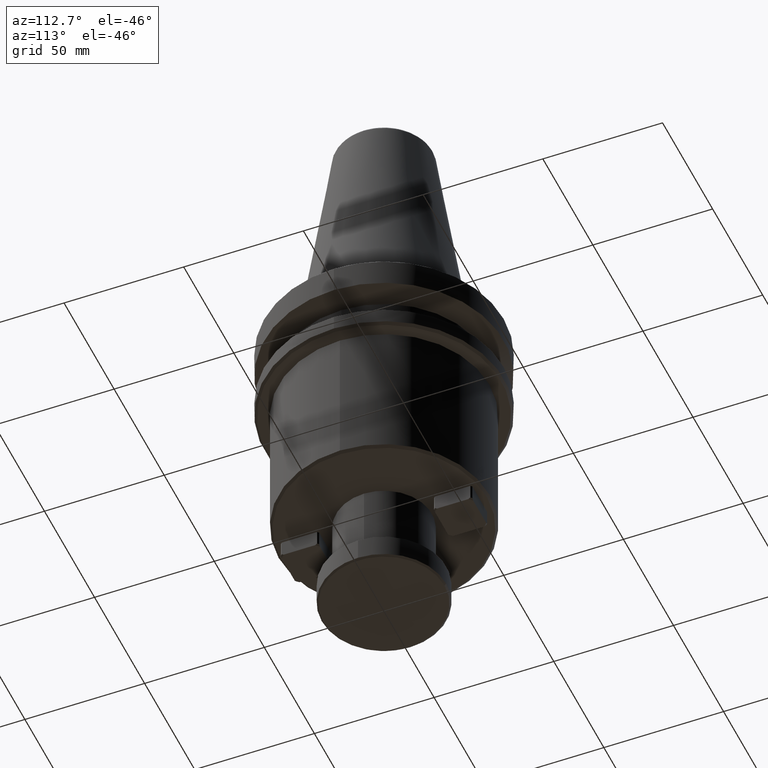
[diagram: clean part render]
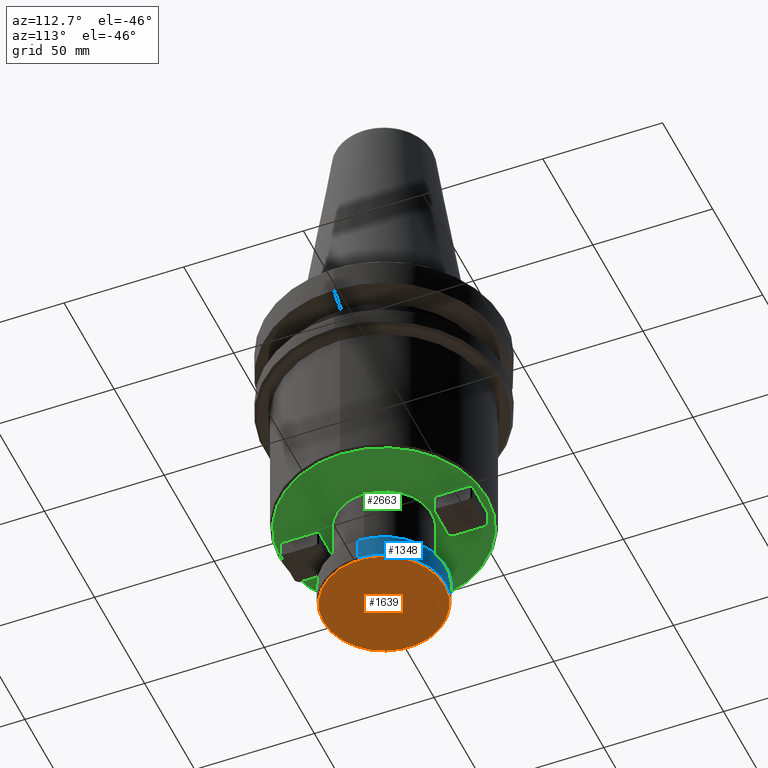
[diagram: same view with three faces highlighted in distinct colors, each labeled with its STEP entity id]
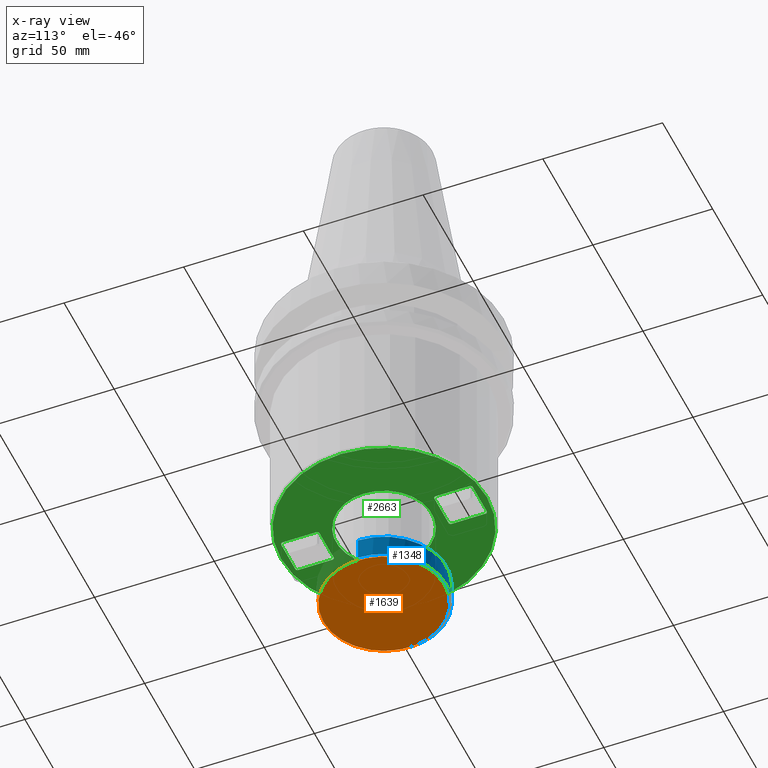
[diagram: x-ray of the same camera — body ghosted, the three highlighted faces saturated]
A machine part, auxiliary view with three faces highlighted in distinct colors.
The next image is the same camera in x-ray (body ghosted, the three faces saturated) — at least one of them is partly hidden behind the body in this view.
Their STEP definitions:

[orange] entity #1639 — the highlighted planar face has unit normal (0, 0, 1).
#251 = CIRCLE ( 'NONE', #729, 25.30000000000000100 ) ;
#275 = VERTEX_POINT ( 'NONE', #1646 ) ;
#350 = FACE_OUTER_BOUND ( 'NONE', #717, .T. ) ;
#363 = DIRECTION ( 'NONE',  ( 1.000000000000000000, 0.0000000000000000000, -0.0000000000000000000 ) ) ;
#364 = DIRECTION ( 'NONE',  ( 0.0000000000000000000, 0.0000000000000000000, 1.000000000000000000 ) ) ;
#365 = CARTESIAN_POINT ( 'NONE',  ( 0.0000000000000000000, 25.30000000000000100, -142.0000000000000600 ) ) ;
#371 = PLANE ( 'NONE',  #471 ) ;
#393 = CARTESIAN_POINT ( 'NONE',  ( 0.0000000000000000000, -25.30000000000000100, -142.0000000000000600 ) ) ;
#429 = CIRCLE ( 'NONE', #2447, 25.30000000000000100 ) ;
#471 = AXIS2_PLACEMENT_3D ( 'NONE', #365, #364, #363 ) ;
#717 = EDGE_LOOP ( 'NONE', ( #1407, #1241 ) ) ;
#729 = AXIS2_PLACEMENT_3D ( 'NONE', #1459, #1458, #1456 ) ;
#949 = EDGE_CURVE ( 'NONE', #1622, #275, #251, .T. ) ;
#1241 = ORIENTED_EDGE ( 'NONE', *, *, #2445, .F. ) ;
#1407 = ORIENTED_EDGE ( 'NONE', *, *, #949, .F. ) ;
#1456 = DIRECTION ( 'NONE',  ( 0.0000000000000000000, -1.000000000000000000, 0.0000000000000000000 ) ) ;
#1458 = DIRECTION ( 'NONE',  ( 0.0000000000000000000, -5.337610695313252400E-016, 1.000000000000000000 ) ) ;
#1459 = CARTESIAN_POINT ( 'NONE',  ( 0.0000000000000000000, 3.736327486719161500E-016, -142.0000000000000600 ) ) ;
#1622 = VERTEX_POINT ( 'NONE', #393 ) ;
#1639 = ADVANCED_FACE ( 'NONE', ( #350 ), #371, .F. ) ;
#1646 = CARTESIAN_POINT ( 'NONE',  ( 3.141219039812960700E-015, 25.30000000000000100, -142.0000000000000600 ) ) ;
#2041 = DIRECTION ( 'NONE',  ( 0.0000000000000000000, -1.000000000000000000, 0.0000000000000000000 ) ) ;
#2042 = DIRECTION ( 'NONE',  ( 0.0000000000000000000, -5.337610695313252400E-016, 1.000000000000000000 ) ) ;
#2045 = CARTESIAN_POINT ( 'NONE',  ( 0.0000000000000000000, 3.736327486719161500E-016, -142.0000000000000600 ) ) ;
#2445 = EDGE_CURVE ( 'NONE', #275, #1622, #429, .T. ) ;
#2447 = AXIS2_PLACEMENT_3D ( 'NONE', #2045, #2042, #2041 ) ;

[blue] entity #1348 — the highlighted cylindrical surface (partial cylindrical patch) has radius 26 mm, axis along (0, 0, 1).
#42 = CIRCLE ( 'NONE', #1723, 26.00000000000000400 ) ;
#153 = ORIENTED_EDGE ( 'NONE', *, *, #315, .F. ) ;
#156 = ORIENTED_EDGE ( 'NONE', *, *, #515, .T. ) ;
#262 = CYLINDRICAL_SURFACE ( 'NONE', #2079, 26.00000000000000400 ) ;
#271 = CARTESIAN_POINT ( 'NONE',  ( 0.0000000000000000000, 0.0000000000000000000, -141.3000000000000400 ) ) ;
#272 = AXIS2_PLACEMENT_3D ( 'NONE', #1048, #1046, #1044 ) ;
#273 = DIRECTION ( 'NONE',  ( 0.0000000000000000000, 0.0000000000000000000, 1.000000000000000000 ) ) ;
#276 = DIRECTION ( 'NONE',  ( 1.000000000000000000, 0.0000000000000000000, 0.0000000000000000000 ) ) ;
#315 = EDGE_CURVE ( 'NONE', #2545, #2067, #694, .T. ) ;
#320 = FACE_OUTER_BOUND ( 'NONE', #660, .T. ) ;
#384 = VERTEX_POINT ( 'NONE', #1739 ) ;
#515 = EDGE_CURVE ( 'NONE', #2608, #2065, #2339, .T. ) ;
#570 = EDGE_CURVE ( 'NONE', #2545, #2608, #42, .T. ) ;
#660 = EDGE_LOOP ( 'NONE', ( #156, #2601, #987, #153, #689 ) ) ;
#689 = ORIENTED_EDGE ( 'NONE', *, *, #570, .T. ) ;
#694 = LINE ( 'NONE', #2043, #1716 ) ;
#807 = DIRECTION ( 'NONE',  ( 1.000000000000000000, 0.0000000000000000000, 0.0000000000000000000 ) ) ;
#809 = CARTESIAN_POINT ( 'NONE',  ( 0.0000000000000000000, 0.0000000000000000000, 0.0000000000000000000 ) ) ;
#815 = LINE ( 'NONE', #1670, #1425 ) ;
#845 = DIRECTION ( 'NONE',  ( 0.0000000000000000000, 0.0000000000000000000, 1.000000000000000000 ) ) ;
#987 = ORIENTED_EDGE ( 'NONE', *, *, #1246, .F. ) ;
#1044 = DIRECTION ( 'NONE',  ( -1.000000000000000000, 0.0000000000000000000, 0.0000000000000000000 ) ) ;
#1046 = DIRECTION ( 'NONE',  ( -0.0000000000000000000, -0.0000000000000000000, 1.000000000000000000 ) ) ;
#1048 = CARTESIAN_POINT ( 'NONE',  ( 0.0000000000000000000, 0.0000000000000000000, -131.7000000000000200 ) ) ;
#1246 = EDGE_CURVE ( 'NONE', #2067, #384, #1729, .T. ) ;
#1348 = ADVANCED_FACE ( 'NONE', ( #320 ), #262, .T. ) ;
#1425 = VECTOR ( 'NONE', #1671, 1000.000000000000000 ) ;
#1581 = CARTESIAN_POINT ( 'NONE',  ( 3.184081677783118600E-015, 26.00000000000000400, -141.3000000000000400 ) ) ;
#1656 = CARTESIAN_POINT ( 'NONE',  ( 26.00000000000000400, 0.0000000000000000000, -141.3000000000000400 ) ) ;
#1670 = CARTESIAN_POINT ( 'NONE',  ( -26.00000000000000400, 3.184081677783118600E-015, 0.0000000000000000000 ) ) ;
#1671 = DIRECTION ( 'NONE',  ( 0.0000000000000000000, 0.0000000000000000000, 1.000000000000000000 ) ) ;
#1716 = VECTOR ( 'NONE', #1768, 1000.000000000000000 ) ;
#1723 = AXIS2_PLACEMENT_3D ( 'NONE', #2188, #2575, #2263 ) ;
#1729 = CIRCLE ( 'NONE', #272, 26.00000000000000400 ) ;
#1739 = CARTESIAN_POINT ( 'NONE',  ( -26.00000000000000400, 3.184081677783118600E-015, -131.7000000000000200 ) ) ;
#1757 = AXIS2_PLACEMENT_3D ( 'NONE', #271, #273, #276 ) ;
#1768 = DIRECTION ( 'NONE',  ( 0.0000000000000000000, 0.0000000000000000000, 1.000000000000000000 ) ) ;
#2043 = CARTESIAN_POINT ( 'NONE',  ( 26.00000000000000400, 0.0000000000000000000, 0.0000000000000000000 ) ) ;
#2065 = VERTEX_POINT ( 'NONE', #2642 ) ;
#2067 = VERTEX_POINT ( 'NONE', #2637 ) ;
#2079 = AXIS2_PLACEMENT_3D ( 'NONE', #809, #845, #807 ) ;
#2188 = CARTESIAN_POINT ( 'NONE',  ( 0.0000000000000000000, 0.0000000000000000000, -141.3000000000000400 ) ) ;
#2263 = DIRECTION ( 'NONE',  ( 1.000000000000000000, 0.0000000000000000000, 0.0000000000000000000 ) ) ;
#2339 = CIRCLE ( 'NONE', #1757, 26.00000000000000400 ) ;
#2520 = EDGE_CURVE ( 'NONE', #2065, #384, #815, .T. ) ;
#2545 = VERTEX_POINT ( 'NONE', #1656 ) ;
#2575 = DIRECTION ( 'NONE',  ( 0.0000000000000000000, 0.0000000000000000000, 1.000000000000000000 ) ) ;
#2601 = ORIENTED_EDGE ( 'NONE', *, *, #2520, .T. ) ;
#2608 = VERTEX_POINT ( 'NONE', #1581 ) ;
#2637 = CARTESIAN_POINT ( 'NONE',  ( 26.00000000000000400, 0.0000000000000000000, -131.7000000000000200 ) ) ;
#2642 = CARTESIAN_POINT ( 'NONE',  ( -26.00000000000000400, 3.184081677783118600E-015, -141.3000000000000400 ) ) ;

[green] entity #2663 — the highlighted planar face has unit normal (0, 0, -1).
#11 = VERTEX_POINT ( 'NONE', #1707 ) ;
#19 = VERTEX_POINT ( 'NONE', #2400 ) ;
#28 = DIRECTION ( 'NONE',  ( 0.0000000000000000000, 1.000000000000000000, 0.0000000000000000000 ) ) ;
#29 = CARTESIAN_POINT ( 'NONE',  ( 7.999999999999992900, 0.0000000000000000000, -99.99999999999997200 ) ) ;
#31 = CARTESIAN_POINT ( 'NONE',  ( 7.999999999999992900, -39.39999999999994900, -99.99999999999997200 ) ) ;
#53 = DIRECTION ( 'NONE',  ( 1.000000000000000000, -0.0000000000000000000, 0.0000000000000000000 ) ) ;
#54 = CARTESIAN_POINT ( 'NONE',  ( 0.0000000000000000000, 23.99999999999999300, -99.99999999999997200 ) ) ;
#67 = VECTOR ( 'NONE', #2138, 1000.000000000000100 ) ;
#71 = CARTESIAN_POINT ( 'NONE',  ( -7.399999999999951500, -23.99999999999999300, -99.99999999999997200 ) ) ;
#136 = ORIENTED_EDGE ( 'NONE', *, *, #2553, .F. ) ;
#137 = CARTESIAN_POINT ( 'NONE',  ( -7.400000000000043900, -39.99999999999999300, -99.99999999999997200 ) ) ;
#157 = LINE ( 'NONE', #29, #1242 ) ;
#238 = EDGE_CURVE ( 'NONE', #2407, #2262, #550, .T. ) ;
#274 = EDGE_CURVE ( 'NONE', #2475, #914, #2417, .T. ) ;
#304 = EDGE_CURVE ( 'NONE', #1785, #19, #544, .T. ) ;
#327 = VECTOR ( 'NONE', #53, 1000.000000000000000 ) ;
#334 = EDGE_CURVE ( 'NONE', #2165, #993, #1363, .T. ) ;
#335 = ORIENTED_EDGE ( 'NONE', *, *, #304, .T. ) ;
#336 = LINE ( 'NONE', #1636, #2546 ) ;
#381 = AXIS2_PLACEMENT_3D ( 'NONE', #1135, #1118, #1116 ) ;
#400 = ORIENTED_EDGE ( 'NONE', *, *, #334, .F. ) ;
#418 = CARTESIAN_POINT ( 'NONE',  ( 7.999999999999994700, -24.60000000000003300, -99.99999999999997200 ) ) ;
#438 = VECTOR ( 'NONE', #1945, 1000.000000000000100 ) ;
#454 = VERTEX_POINT ( 'NONE', #2380 ) ;
#455 = EDGE_CURVE ( 'NONE', #914, #993, #2411, .T. ) ;
#469 = ORIENTED_EDGE ( 'NONE', *, *, #2335, .F. ) ;
#520 = LINE ( 'NONE', #2691, #2266 ) ;
#538 = LINE ( 'NONE', #2149, #67 ) ;
#544 = LINE ( 'NONE', #1411, #583 ) ;
#550 = LINE ( 'NONE', #1872, #438 ) ;
#583 = VECTOR ( 'NONE', #1856, 1000.000000000000000 ) ;
#637 = VERTEX_POINT ( 'NONE', #71 ) ;
#638 = AXIS2_PLACEMENT_3D ( 'NONE', #795, #792, #790 ) ;
#701 = EDGE_CURVE ( 'NONE', #990, #1144, #1682, .T. ) ;
#733 = EDGE_CURVE ( 'NONE', #19, #1908, #520, .T. ) ;
#780 = ORIENTED_EDGE ( 'NONE', *, *, #2090, .F. ) ;
#790 = DIRECTION ( 'NONE',  ( 1.000000000000000000, 0.0000000000000000000, 0.0000000000000000000 ) ) ;
#792 = DIRECTION ( 'NONE',  ( 0.0000000000000000000, -0.0000000000000000000, 1.000000000000000000 ) ) ;
#795 = CARTESIAN_POINT ( 'NONE',  ( 0.0000000000000000000, 0.0000000000000000000, -99.99999999999994300 ) ) ;
#816 = ORIENTED_EDGE ( 'NONE', *, *, #455, .T. ) ;
#835 = CARTESIAN_POINT ( 'NONE',  ( 20.00000000000001100, 0.0000000000000000000, -99.99999999999998600 ) ) ;
#891 = VERTEX_POINT ( 'NONE', #1518 ) ;
#892 = FACE_BOUND ( 'NONE', #1838, .T. ) ;
#914 = VERTEX_POINT ( 'NONE', #1514 ) ;
#953 = ORIENTED_EDGE ( 'NONE', *, *, #701, .T. ) ;
#961 = FACE_OUTER_BOUND ( 'NONE', #1502, .T. ) ;
#989 = VECTOR ( 'NONE', #1840, 1000.000000000000000 ) ;
#990 = VERTEX_POINT ( 'NONE', #1432 ) ;
#993 = VERTEX_POINT ( 'NONE', #1421 ) ;
#1042 = DIRECTION ( 'NONE',  ( -1.000000000000000000, 0.0000000000000000000, -0.0000000000000000000 ) ) ;
#1050 = CARTESIAN_POINT ( 'NONE',  ( 0.0000000000000000000, 40.00000000000000700, -99.99999999999997200 ) ) ;
#1072 = ORIENTED_EDGE ( 'NONE', *, *, #2289, .F. ) ;
#1077 = VECTOR ( 'NONE', #2170, 1000.000000000000000 ) ;
#1078 = ORIENTED_EDGE ( 'NONE', *, *, #238, .T. ) ;
#1116 = DIRECTION ( 'NONE',  ( 1.000000000000000000, 0.0000000000000000000, 0.0000000000000000000 ) ) ;
#1118 = DIRECTION ( 'NONE',  ( 0.0000000000000000000, 0.0000000000000000000, 1.000000000000000000 ) ) ;
#1125 = EDGE_LOOP ( 'NONE', ( #1156, #2265 ) ) ;
#1135 = CARTESIAN_POINT ( 'NONE',  ( 0.0000000000000000000, 0.0000000000000000000, -99.99999999999998600 ) ) ;
#1144 = VERTEX_POINT ( 'NONE', #1336 ) ;
#1156 = ORIENTED_EDGE ( 'NONE', *, *, #1225, .T. ) ;
#1176 = CIRCLE ( 'NONE', #381, 20.00000000000001100 ) ;
#1192 = VERTEX_POINT ( 'NONE', #1249 ) ;
#1211 = ORIENTED_EDGE ( 'NONE', *, *, #1909, .T. ) ;
#1225 = EDGE_CURVE ( 'NONE', #1337, #2052, #1176, .T. ) ;
#1242 = VECTOR ( 'NONE', #28, 1000.000000000000000 ) ;
#1249 = CARTESIAN_POINT ( 'NONE',  ( -7.399999999999984400, 23.99999999999999300, -99.99999999999997200 ) ) ;
#1336 = CARTESIAN_POINT ( 'NONE',  ( -8.000000000000005300, -39.40000000000003400, -99.99999999999997200 ) ) ;
#1337 = VERTEX_POINT ( 'NONE', #835 ) ;
#1344 = EDGE_CURVE ( 'NONE', #2573, #891, #2002, .T. ) ;
#1347 = VECTOR ( 'NONE', #1042, 1000.000000000000000 ) ;
#1363 = LINE ( 'NONE', #2010, #1970 ) ;
#1388 = ORIENTED_EDGE ( 'NONE', *, *, #2710, .T. ) ;
#1389 = DIRECTION ( 'NONE',  ( -1.000000000000000000, 0.0000000000000000000, -0.0000000000000000000 ) ) ;
#1393 = CARTESIAN_POINT ( 'NONE',  ( 0.0000000000000000000, 0.0000000000000000000, -99.99999999999997200 ) ) ;
#1399 = PLANE ( 'NONE',  #1956 ) ;
#1409 = DIRECTION ( 'NONE',  ( 0.0000000000000000000, 0.0000000000000000000, -1.000000000000000000 ) ) ;
#1411 = CARTESIAN_POINT ( 'NONE',  ( 0.0000000000000000000, -39.99999999999999300, -99.99999999999997200 ) ) ;
#1420 = CARTESIAN_POINT ( 'NONE',  ( -7.399999999999951500, -23.99999999999999300, -99.99999999999997200 ) ) ;
#1421 = CARTESIAN_POINT ( 'NONE',  ( 8.000000000000000000, 39.40000000000002000, -99.99999999999997200 ) ) ;
#1428 = LINE ( 'NONE', #1050, #1347 ) ;
#1429 = DIRECTION ( 'NONE',  ( -0.7071067811865474600, -0.7071067811865474600, -0.0000000000000000000 ) ) ;
#1432 = CARTESIAN_POINT ( 'NONE',  ( -7.999999999999996400, -24.60000000000003700, -99.99999999999997200 ) ) ;
#1455 = ORIENTED_EDGE ( 'NONE', *, *, #274, .T. ) ;
#1502 = EDGE_LOOP ( 'NONE', ( #2446, #1072 ) ) ;
#1514 = CARTESIAN_POINT ( 'NONE',  ( 8.000000000000000000, 24.60000000000001200, -99.99999999999997200 ) ) ;
#1518 = CARTESIAN_POINT ( 'NONE',  ( -43.00000000000000000, 5.327213576290986800E-015, -99.99999999999994300 ) ) ;
#1554 = LINE ( 'NONE', #54, #327 ) ;
#1556 = CIRCLE ( 'NONE', #2399, 20.00000000000001100 ) ;
#1567 = FACE_BOUND ( 'NONE', #1125, .T. ) ;
#1584 = VECTOR ( 'NONE', #2616, 1000.000000000000000 ) ;
#1590 = VERTEX_POINT ( 'NONE', #418 ) ;
#1634 = DIRECTION ( 'NONE',  ( -0.7071067811865474600, 0.7071067811865474600, -0.0000000000000000000 ) ) ;
#1635 = CARTESIAN_POINT ( 'NONE',  ( 43.00000000000000000, 0.0000000000000000000, -99.99999999999994300 ) ) ;
#1636 = CARTESIAN_POINT ( 'NONE',  ( -8.000000000000007100, -39.40000000000003400, -99.99999999999997200 ) ) ;
#1682 = LINE ( 'NONE', #2095, #1077 ) ;
#1707 = CARTESIAN_POINT ( 'NONE',  ( -8.000000000000000000, 24.59999999999998000, -99.99999999999997200 ) ) ;
#1780 = LINE ( 'NONE', #2619, #1584 ) ;
#1784 = DIRECTION ( 'NONE',  ( 0.7071067811865474600, -0.7071067811865474600, -0.0000000000000000000 ) ) ;
#1785 = VERTEX_POINT ( 'NONE', #137 ) ;
#1816 = CIRCLE ( 'NONE', #2746, 43.00000000000000000 ) ;
#1821 = CARTESIAN_POINT ( 'NONE',  ( 7.399999999999980800, 23.99999999999998900, -99.99999999999997200 ) ) ;
#1838 = EDGE_LOOP ( 'NONE', ( #335, #2415, #1211, #469, #1994, #2383, #953, #136 ) ) ;
#1840 = DIRECTION ( 'NONE',  ( 0.0000000000000000000, 1.000000000000000000, 0.0000000000000000000 ) ) ;
#1856 = DIRECTION ( 'NONE',  ( 1.000000000000000000, -0.0000000000000000000, 0.0000000000000000000 ) ) ;
#1872 = CARTESIAN_POINT ( 'NONE',  ( -7.399999999999982600, 40.00000000000000700, -99.99999999999997200 ) ) ;
#1884 = EDGE_CURVE ( 'NONE', #1192, #2475, #1554, .T. ) ;
#1908 = VERTEX_POINT ( 'NONE', #31 ) ;
#1909 = EDGE_CURVE ( 'NONE', #1908, #1590, #157, .T. ) ;
#1911 = EDGE_LOOP ( 'NONE', ( #2576, #1455, #816, #400, #1388, #1078, #2774, #780 ) ) ;
#1945 = DIRECTION ( 'NONE',  ( -0.7071067811865474600, -0.7071067811865474600, -0.0000000000000000000 ) ) ;
#1956 = AXIS2_PLACEMENT_3D ( 'NONE', #1393, #1409, #1389 ) ;
#1970 = VECTOR ( 'NONE', #1784, 1000.000000000000100 ) ;
#1994 = ORIENTED_EDGE ( 'NONE', *, *, #2483, .T. ) ;
#2000 = CARTESIAN_POINT ( 'NONE',  ( 7.399999999999981700, 23.99999999999999300, -99.99999999999997200 ) ) ;
#2002 = CIRCLE ( 'NONE', #638, 43.00000000000000000 ) ;
#2007 = CARTESIAN_POINT ( 'NONE',  ( 0.0000000000000000000, -23.99999999999999300, -99.99999999999997200 ) ) ;
#2009 = DIRECTION ( 'NONE',  ( 1.000000000000000000, 0.0000000000000000000, 0.0000000000000000000 ) ) ;
#2010 = CARTESIAN_POINT ( 'NONE',  ( 8.000000000000000000, 39.40000000000002000, -99.99999999999997200 ) ) ;
#2011 = DIRECTION ( 'NONE',  ( 0.0000000000000000000, 0.0000000000000000000, 1.000000000000000000 ) ) ;
#2015 = CARTESIAN_POINT ( 'NONE',  ( 0.0000000000000000000, 0.0000000000000000000, -99.99999999999998600 ) ) ;
#2019 = DIRECTION ( 'NONE',  ( -1.000000000000000000, 0.0000000000000000000, -0.0000000000000000000 ) ) ;
#2052 = VERTEX_POINT ( 'NONE', #2653 ) ;
#2064 = DIRECTION ( 'NONE',  ( 0.7071067811865474600, 0.7071067811865474600, -0.0000000000000000000 ) ) ;
#2089 = LINE ( 'NONE', #2007, #2159 ) ;
#2090 = EDGE_CURVE ( 'NONE', #1192, #11, #1780, .T. ) ;
#2095 = CARTESIAN_POINT ( 'NONE',  ( -7.999999999999996400, 0.0000000000000000000, -99.99999999999997200 ) ) ;
#2103 = CARTESIAN_POINT ( 'NONE',  ( -7.399999999999983500, 40.00000000000000700, -99.99999999999997200 ) ) ;
#2138 = DIRECTION ( 'NONE',  ( 0.7071067811865638900, -0.7071067811865312500, -0.0000000000000000000 ) ) ;
#2149 = CARTESIAN_POINT ( 'NONE',  ( 7.999999999999996400, -24.60000000000003700, -99.99999999999997200 ) ) ;
#2154 = DIRECTION ( 'NONE',  ( 1.000000000000000000, 0.0000000000000000000, 0.0000000000000000000 ) ) ;
#2156 = DIRECTION ( 'NONE',  ( 0.0000000000000000000, -0.0000000000000000000, 1.000000000000000000 ) ) ;
#2159 = VECTOR ( 'NONE', #2019, 1000.000000000000000 ) ;
#2161 = CARTESIAN_POINT ( 'NONE',  ( 0.0000000000000000000, 0.0000000000000000000, -99.99999999999994300 ) ) ;
#2165 = VERTEX_POINT ( 'NONE', #2582 ) ;
#2170 = DIRECTION ( 'NONE',  ( -0.0000000000000000000, -1.000000000000000000, -0.0000000000000000000 ) ) ;
#2174 = FACE_BOUND ( 'NONE', #1911, .T. ) ;
#2198 = EDGE_CURVE ( 'NONE', #2262, #11, #2627, .T. ) ;
#2232 = VECTOR ( 'NONE', #2064, 1000.000000000000100 ) ;
#2262 = VERTEX_POINT ( 'NONE', #2492 ) ;
#2265 = ORIENTED_EDGE ( 'NONE', *, *, #2462, .T. ) ;
#2266 = VECTOR ( 'NONE', #2456, 1000.000000000000100 ) ;
#2289 = EDGE_CURVE ( 'NONE', #891, #2573, #1816, .T. ) ;
#2312 = LINE ( 'NONE', #1420, #2742 ) ;
#2335 = EDGE_CURVE ( 'NONE', #454, #1590, #538, .T. ) ;
#2380 = CARTESIAN_POINT ( 'NONE',  ( 7.399999999999924000, -23.99999999999999300, -99.99999999999997200 ) ) ;
#2383 = ORIENTED_EDGE ( 'NONE', *, *, #2655, .T. ) ;
#2399 = AXIS2_PLACEMENT_3D ( 'NONE', #2015, #2011, #2009 ) ;
#2400 = CARTESIAN_POINT ( 'NONE',  ( 7.399999999999948800, -39.99999999999999300, -99.99999999999997200 ) ) ;
#2407 = VERTEX_POINT ( 'NONE', #2103 ) ;
#2411 = LINE ( 'NONE', #2641, #989 ) ;
#2415 = ORIENTED_EDGE ( 'NONE', *, *, #733, .T. ) ;
#2417 = LINE ( 'NONE', #1821, #2232 ) ;
#2446 = ORIENTED_EDGE ( 'NONE', *, *, #1344, .F. ) ;
#2456 = DIRECTION ( 'NONE',  ( 0.7071067811865474600, 0.7071067811865474600, -0.0000000000000000000 ) ) ;
#2462 = EDGE_CURVE ( 'NONE', #2052, #1337, #1556, .T. ) ;
#2475 = VERTEX_POINT ( 'NONE', #2000 ) ;
#2483 = EDGE_CURVE ( 'NONE', #454, #637, #2089, .T. ) ;
#2492 = CARTESIAN_POINT ( 'NONE',  ( -8.000000000000000000, 39.39999999999999100, -99.99999999999997200 ) ) ;
#2508 = VECTOR ( 'NONE', #2528, 1000.000000000000000 ) ;
#2523 = CARTESIAN_POINT ( 'NONE',  ( -8.000000000000000000, 0.0000000000000000000, -99.99999999999997200 ) ) ;
#2528 = DIRECTION ( 'NONE',  ( -0.0000000000000000000, -1.000000000000000000, -0.0000000000000000000 ) ) ;
#2546 = VECTOR ( 'NONE', #1634, 1000.000000000000100 ) ;
#2553 = EDGE_CURVE ( 'NONE', #1785, #1144, #336, .T. ) ;
#2573 = VERTEX_POINT ( 'NONE', #1635 ) ;
#2576 = ORIENTED_EDGE ( 'NONE', *, *, #1884, .T. ) ;
#2582 = CARTESIAN_POINT ( 'NONE',  ( 7.400000000000011000, 40.00000000000000700, -99.99999999999997200 ) ) ;
#2616 = DIRECTION ( 'NONE',  ( -0.7071067811865638900, 0.7071067811865311400, -0.0000000000000000000 ) ) ;
#2619 = CARTESIAN_POINT ( 'NONE',  ( -8.000000000000001800, 24.59999999999998400, -99.99999999999997200 ) ) ;
#2627 = LINE ( 'NONE', #2523, #2508 ) ;
#2641 = CARTESIAN_POINT ( 'NONE',  ( 7.999999999999998200, 0.0000000000000000000, -99.99999999999997200 ) ) ;
#2653 = CARTESIAN_POINT ( 'NONE',  ( -20.00000000000001100, 2.449293598294708100E-015, -99.99999999999998600 ) ) ;
#2655 = EDGE_CURVE ( 'NONE', #637, #990, #2312, .T. ) ;
#2663 = ADVANCED_FACE ( 'NONE', ( #961, #1567, #2174, #892 ), #1399, .T. ) ;
#2691 = CARTESIAN_POINT ( 'NONE',  ( 7.399999999999948000, -39.99999999999999300, -99.99999999999997200 ) ) ;
#2710 = EDGE_CURVE ( 'NONE', #2165, #2407, #1428, .T. ) ;
#2742 = VECTOR ( 'NONE', #1429, 1000.000000000000100 ) ;
#2746 = AXIS2_PLACEMENT_3D ( 'NONE', #2161, #2156, #2154 ) ;
#2774 = ORIENTED_EDGE ( 'NONE', *, *, #2198, .T. ) ;